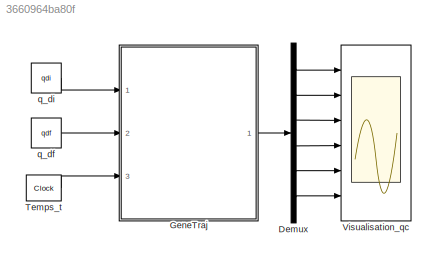
MODEL slx_3660964ba80f
KIND model
CONFIG AbsTol = auto
CONFIG EnableMultiTasking = off
CONFIG FixedStep = auto
CONFIG MaxStep = auto
CONFIG MinStep = auto
CONFIG RelTol = 1e-3
CONFIG SampleTimeConstraint = Unconstrained
CONFIG Solver = VariableStepAuto
CONFIG SolverName = VariableStepAuto
CONFIG StartTime = 0.0
CONFIG StopTime = 500
BLOCK [Demux] Demux
  DisplayOption = bar
  Outputs = 6
  Ports = [1, 6]
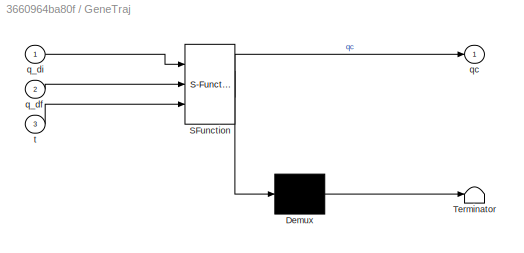
BLOCK [SubSystem] GeneTraj
  ErrorFcn = Stateflow.Translate.translate
  PermitHierarchicalResolution = ExplicitOnly
  Ports = [3, 1]
  RequestExecContextInheritance = off
  SFBlockType = MATLAB Function
  TreatAsAtomicUnit = on
BLOCK [Demux] GeneTraj/ Demux 
  Outputs = 1
  Ports = [1, 1]
BLOCK [S-Function] GeneTraj/ SFunction 
  EnableBusSupport = on
  FunctionName = sf_sfun
  PortCounts = [3 2]
  Ports = [3, 2]
  SFcnIsStateOwnerBlock = off
  SFunctionDeploymentMode = off
  Tag = Stateflow S-Function 2
BLOCK [Terminator] GeneTraj/ Terminator 
BLOCK [Inport] GeneTraj/q_df
  IconDisplay = Port number
  Port = 2
BLOCK [Inport] GeneTraj/q_di
  IconDisplay = Port number
BLOCK [Outport] GeneTraj/qc
  IconDisplay = Port number
BLOCK [Inport] GeneTraj/t
  IconDisplay = Port number
  Port = 3
BLOCK [Clock] Temps_t 
  Decimation = 1
BLOCK [Scope] Visualisation_qc
  Floating = off
  NumInputPorts = 6
  Ports = [6]
  ScopeSpecificationString = Simulink.scopes.TimeScopeBlockCfg('CurrentConfiguration', extmgr.ConfigurationSet(extmgr.Configuration('Core','General UI',true),extmgr.Configuration('Core','Source UI',true),extmgr.Configuration('Sources','WiredSimulink',true),extmgr.Configuration('Visuals','Time Domain',true,'TimeAxisLabels','All','SerializedDisplays',{struct('MinYLimReal','-1.125','MaxYLimReal','0.125','YLabelReal','q','MinYLim...<+4935ch>
BLOCK [Constant] q_df 
  Value = qdf
  VectorParams1D = off
BLOCK [Constant] q_di
  Value = qdi
  VectorParams1D = off
LINE Demux:1 -> Visualisation_qc:1
LINE Demux:2 -> Visualisation_qc:2
LINE Demux:3 -> Visualisation_qc:3
LINE Demux:4 -> Visualisation_qc:4
LINE Demux:5 -> Visualisation_qc:5
LINE Demux:6 -> Visualisation_qc:6
LINE GeneTraj:1 -> Demux:1
LINE Temps_t :1 -> GeneTraj:3
LINE q_df :1 -> GeneTraj:2
LINE q_di:1 -> GeneTraj:1
CHART GeneTraj states=1 transitions=1
  STATE_LABEL 'eML_blk_kernel()'
  STATE_LABEL 'SCRIPT:\nfunction qc = GeneTraj(q_di, q_df, t)\n    \n    tf = 500; %in ms\n     \n    D = (q_df - q_di);\n    \n    r = 10 * (t/tf)^3 - 15 * (t/tf)^4 + 6 * (t/tf)^5;\n    \n    qc = q_di + r*D;\nend\n'
